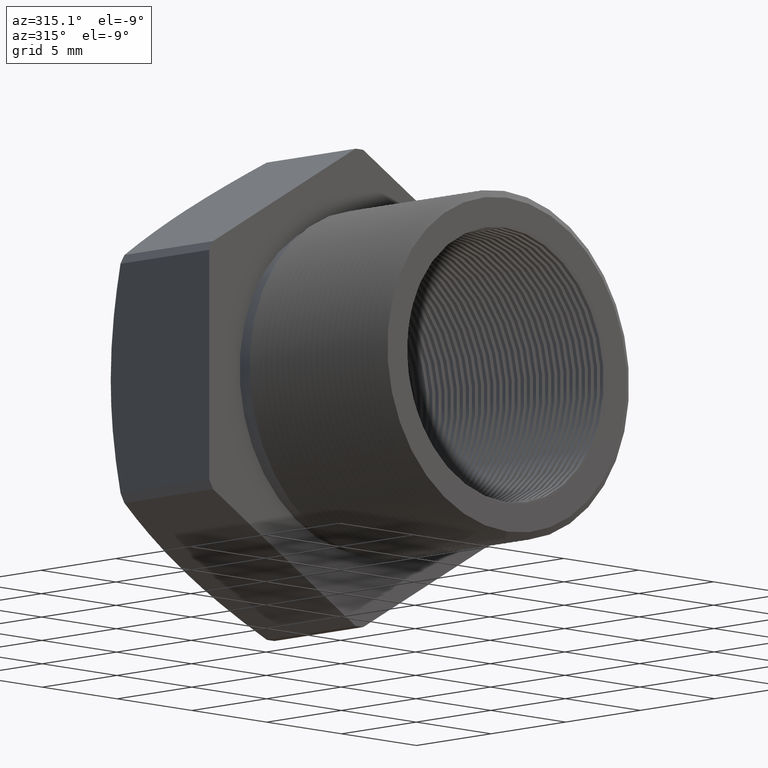
[diagram: clean part render]
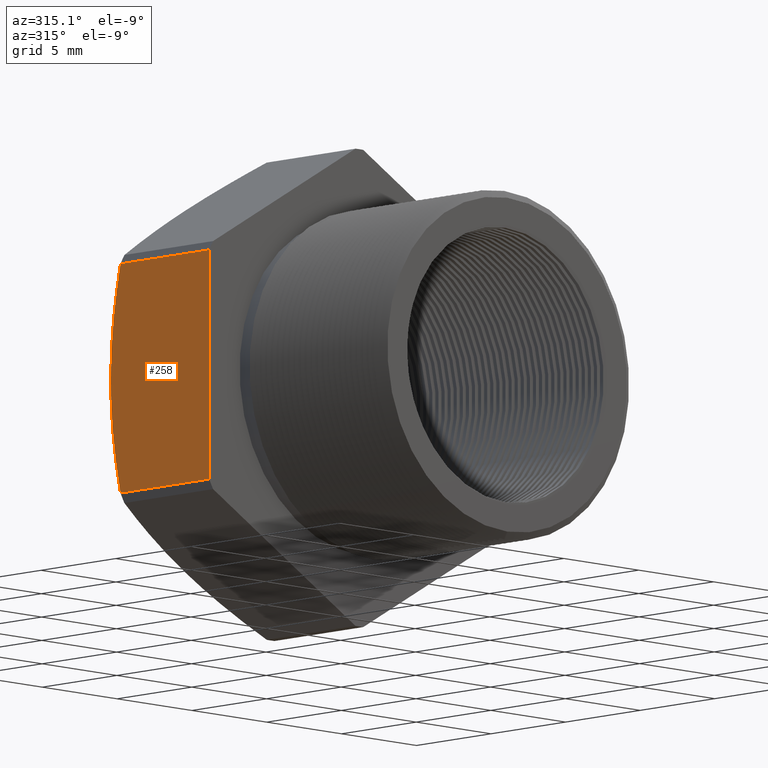
[diagram: same view with one face highlighted and labeled with its STEP entity id]
A machine part, auxiliary view. The second image highlights one B-rep face of the part: STEP entity #258.
In plain terms, the highlighted planar face has unit normal (-1, 0, 0).
Its self-contained STEP definition (entity closure, byte-faithful):
#88 = VERTEX_POINT ( 'NONE', #2284 ) ;
#137 = EDGE_CURVE ( 'NONE', #153, #156, #2376, .T. ) ;
#153 = VERTEX_POINT ( 'NONE', #2405 ) ;
#156 = VERTEX_POINT ( 'NONE', #2462 ) ;
#175 = EDGE_CURVE ( 'NONE', #195, #187, #2487, .T. ) ;
#187 = VERTEX_POINT ( 'NONE', #2469 ) ;
#195 = VERTEX_POINT ( 'NONE', #2515 ) ;
#226 = EDGE_LOOP ( 'NONE', ( #231, #227, #229, #228, #235 ) ) ;
#227 = ORIENTED_EDGE ( 'NONE', *, *, #230, .T. ) ;
#228 = ORIENTED_EDGE ( 'NONE', *, *, #137, .F. ) ;
#229 = ORIENTED_EDGE ( 'NONE', *, *, #236, .T. ) ;
#230 = EDGE_CURVE ( 'NONE', #195, #88, #2577, .T. ) ;
#231 = ORIENTED_EDGE ( 'NONE', *, *, #175, .F. ) ;
#234 = EDGE_CURVE ( 'NONE', #187, #153, #2564, .T. ) ;
#235 = ORIENTED_EDGE ( 'NONE', *, *, #234, .F. ) ;
#236 = EDGE_CURVE ( 'NONE', #88, #156, #2560, .T. ) ;
#258 = ADVANCED_FACE ( 'NONE', ( #2610 ), #2609, .T. ) ;
#2284 = CARTESIAN_POINT ( 'NONE',  ( -0.3949999999999999600, 0.4075548905829479200, 0.0000000000000000000 ) ) ;
#2376 = LINE ( 'NONE', #2431, #2430 ) ;
#2405 = CARTESIAN_POINT ( 'NONE',  ( -0.3949999999999999600, 0.1475548905829479600, -0.2162061284977833100 ) ) ;
#2429 = DIRECTION ( 'NONE',  ( 0.0000000000000000000, 1.000000000000000000, 0.0000000000000000000 ) ) ;
#2430 = VECTOR ( 'NONE', #2429, 39.37007874015748100 ) ;
#2431 = CARTESIAN_POINT ( 'NONE',  ( -0.3949999999999999600, 0.0000000000000000000, -0.2162061284977833100 ) ) ;
#2462 = CARTESIAN_POINT ( 'NONE',  ( -0.3949999999999999600, 0.3817680770869766300, -0.2162061284977833100 ) ) ;
#2469 = CARTESIAN_POINT ( 'NONE',  ( -0.3949999999999999600, 0.1475548905829479600, 0.2162061284977833100 ) ) ;
#2481 = DIRECTION ( 'NONE',  ( -0.0000000000000000000, -1.000000000000000000, -0.0000000000000000000 ) ) ;
#2482 = VECTOR ( 'NONE', #2481, 39.37007874015748100 ) ;
#2483 = CARTESIAN_POINT ( 'NONE',  ( -0.3949999999999999600, 0.0000000000000000000, 0.2162061284977833100 ) ) ;
#2487 = LINE ( 'NONE', #2483, #2482 ) ;
#2515 = CARTESIAN_POINT ( 'NONE',  ( -0.3949999999999999600, 0.3817680770869766300, 0.2162061284977833100 ) ) ;
#2560 = B_SPLINE_CURVE_WITH_KNOTS ( 'NONE', 3,
 ( #2606, #2605, #2604, #2603, #2602, #2601 ),
 .UNSPECIFIED., .F., .F.,
 ( 4, 2, 4 ),
 ( 0.02900509596323218000, 0.03174678321578506400, 0.03448847046833794500 ),
 .UNSPECIFIED. ) ;
#2561 = DIRECTION ( 'NONE',  ( 0.0000000000000000000, 0.0000000000000000000, -1.000000000000000000 ) ) ;
#2562 = VECTOR ( 'NONE', #2561, 39.37007874015748100 ) ;
#2563 = CARTESIAN_POINT ( 'NONE',  ( -0.3949999999999999600, 0.1475548905829479600, 0.0000000000000000000 ) ) ;
#2564 = LINE ( 'NONE', #2563, #2562 ) ;
#2566 = CARTESIAN_POINT ( 'NONE',  ( -0.3949999999999999600, 0.4075548905829479200, 0.0000000000000000000 ) ) ;
#2567 = CARTESIAN_POINT ( 'NONE',  ( -0.3949999999999999600, 0.4075548905829479200, 0.03612960384961803900 ) ) ;
#2568 = CARTESIAN_POINT ( 'NONE',  ( -0.3949999999999999600, 0.4052039048660248700, 0.07230252560162939200 ) ) ;
#2569 = CARTESIAN_POINT ( 'NONE',  ( -0.3950000000000000200, 0.3984941280353006500, 0.1266205618412448400 ) ) ;
#2570 = CARTESIAN_POINT ( 'NONE',  ( -0.3949999999999999100, 0.3957247617337310000, 0.1447813574702673800 ) ) ;
#2571 = CARTESIAN_POINT ( 'NONE',  ( -0.3949999999999999600, 0.3893425190302214900, 0.1807096371991025500 ) ) ;
#2572 = CARTESIAN_POINT ( 'NONE',  ( -0.3949999999999999600, 0.3857277810940457600, 0.1985203524228407200 ) ) ;
#2573 = CARTESIAN_POINT ( 'NONE',  ( -0.3949999999999999600, 0.3817680770869766300, 0.2162061284977833100 ) ) ;
#2577 = B_SPLINE_CURVE_WITH_KNOTS ( 'NONE', 3,
 ( #2573, #2572, #2571, #2570, #2569, #2568, #2567, #2566 ),
 .UNSPECIFIED., .F., .F.,
 ( 4, 2, 2, 4 ),
 ( 0.02352565897923655800, 0.02489551822523546400, 0.02626537747123437000, 0.02900509596323218000 ),
 .UNSPECIFIED. ) ;
#2601 = CARTESIAN_POINT ( 'NONE',  ( -0.3949999999999999600, 0.3817680770869766300, -0.2162061284977833100 ) ) ;
#2602 = CARTESIAN_POINT ( 'NONE',  ( -0.3950000000000000200, 0.3897436049692260500, -0.1805839203849788400 ) ) ;
#2603 = CARTESIAN_POINT ( 'NONE',  ( -0.3949999999999999100, 0.3963026295804197900, -0.1444149386209685500 ) ) ;
#2604 = CARTESIAN_POINT ( 'NONE',  ( -0.3949999999999999600, 0.4052015678598631100, -0.07226777217275479100 ) ) ;
#2605 = CARTESIAN_POINT ( 'NONE',  ( -0.3949999999999999600, 0.4075548905829479700, -0.03615556656773565000 ) ) ;
#2606 = CARTESIAN_POINT ( 'NONE',  ( -0.3949999999999999600, 0.4075548905829479200, 0.0000000000000000000 ) ) ;
#2609 = PLANE ( 'NONE',  #2668 ) ;
#2610 = FACE_OUTER_BOUND ( 'NONE', #226, .T. ) ;
#2664 = DIRECTION ( 'NONE',  ( 0.0000000000000000000, 0.0000000000000000000, 1.000000000000000000 ) ) ;
#2665 = DIRECTION ( 'NONE',  ( -1.000000000000000000, 0.0000000000000000000, 0.0000000000000000000 ) ) ;
#2666 = CARTESIAN_POINT ( 'NONE',  ( -0.3949999999999999600, 0.4075548905829479700, 0.2280533563299023400 ) ) ;
#2668 = AXIS2_PLACEMENT_3D ( 'NONE', #2666, #2665, #2664 ) ;